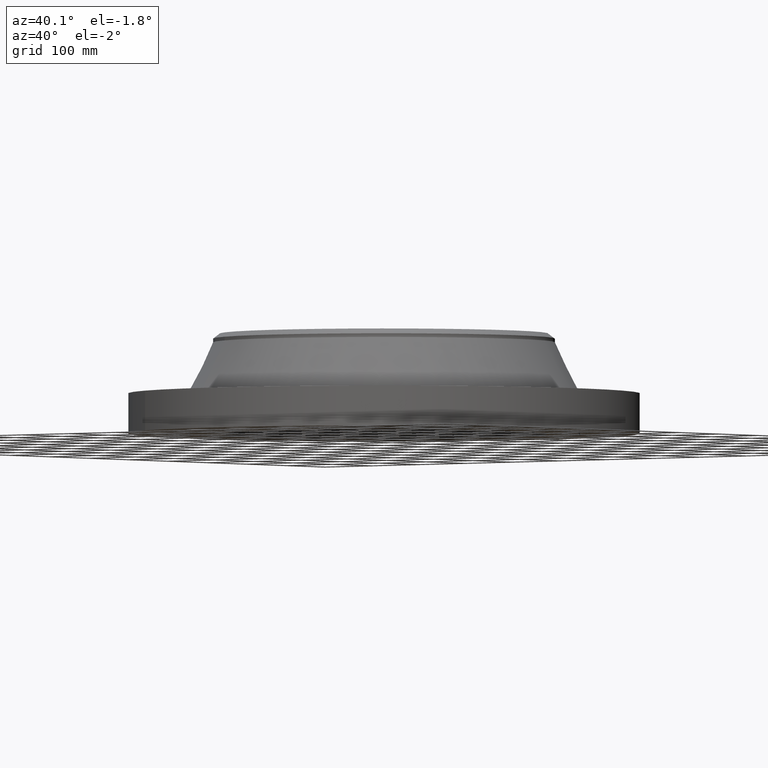
[diagram: clean part render]
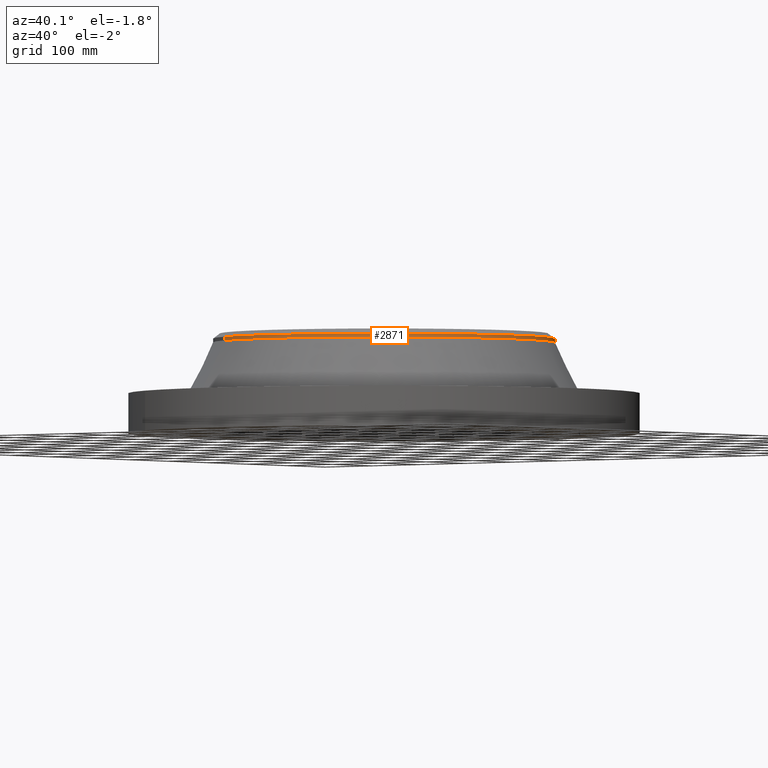
[diagram: same view with one face highlighted and labeled with its STEP entity id]
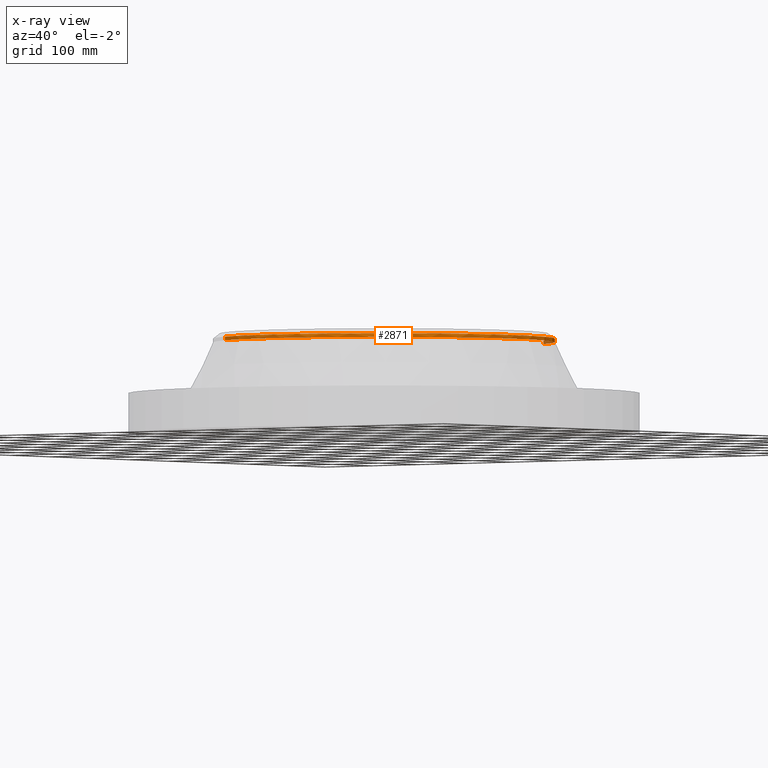
[diagram: x-ray of the same camera — body ghosted, the highlighted face saturated]
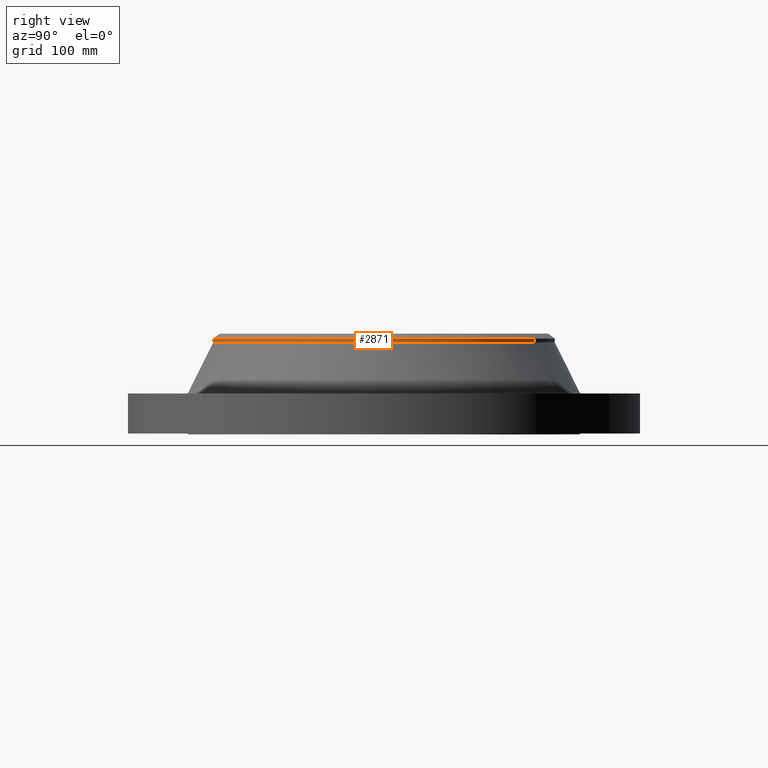
[diagram: same view with one face highlighted and labeled with its STEP entity id]
A machine part, auxiliary view. The second image highlights one B-rep face of the part: STEP entity #2871.
The next image is the same camera in x-ray: the body ghosted, the highlighted face saturated — about 2% of this face is hidden behind the body in this view.
A second angle (right view) of the same face is appended — the face is thin or edge-on in the first view.
In plain terms, the highlighted cylindrical surface (partial cylindrical patch) has radius 279.4 mm, axis along (-0, 0, -1).
Its self-contained STEP definition (entity closure, byte-faithful):
#2519=AXIS2_PLACEMENT_3D('Circle Axis2P3D',#2517,#2518,$) ;
#2850=AXIS2_PLACEMENT_3D('Cylinder Axis2P3D',#2847,#2848,#2849) ;
#2854=AXIS2_PLACEMENT_3D('Circle Axis2P3D',#2852,#2853,$) ;
#2861=AXIS2_PLACEMENT_3D('Circle Axis2P3D',#2859,#2860,$) ;
#2483=CARTESIAN_POINT('Vertex',(-5.27368092465,-9.65340818079,5.87053548147)) ;
#2490=CARTESIAN_POINT('Vertex',(5.27368092465,9.6534081808,5.87053548145)) ;
#2517=CARTESIAN_POINT('Axis2P3D Location',(0.,0.,5.87053548147)) ;
#2806=CARTESIAN_POINT('Line Origine',(5.27368092465,9.65340818079,5.98864571768)) ;
#2810=CARTESIAN_POINT('Vertex',(5.27368092465,9.65340818079,6.1067559539)) ;
#2813=CARTESIAN_POINT('Line Origine',(-5.27368092465,-9.65340818079,5.98864571768)) ;
#2817=CARTESIAN_POINT('Vertex',(-5.27368092465,-9.65340818079,6.1067559539)) ;
#2847=CARTESIAN_POINT('Axis2P3D Location',(0.,0.,3.18375000001)) ;
#2852=CARTESIAN_POINT('Axis2P3D Location',(0.,0.,6.10675595391)) ;
#2856=CARTESIAN_POINT('Vertex',(5.27368092465,-9.65340818079,6.1067559539)) ;
#2859=CARTESIAN_POINT('Axis2P3D Location',(0.,0.,6.1067559539)) ;
#2518=DIRECTION('Axis2P3D Direction',(-0.,0.,-0.0393700787402)) ;
#2807=DIRECTION('Vector Direction',(0.,0.,-0.0393700787402)) ;
#2814=DIRECTION('Vector Direction',(0.,0.,-0.0393700787402)) ;
#2848=DIRECTION('Axis2P3D Direction',(-0.,0.,-0.0393700787402)) ;
#2849=DIRECTION('Axis2P3D XDirection',(0.0188750212049,0.0345504945626,0.)) ;
#2853=DIRECTION('Axis2P3D Direction',(-0.,0.,-0.0393700787402)) ;
#2860=DIRECTION('Axis2P3D Direction',(-0.,0.,-0.0393700787402)) ;
#2808=VECTOR('Line Direction',#2807,0.0393700787402) ;
#2815=VECTOR('Line Direction',#2814,0.0393700787402) ;
#2865=ORIENTED_EDGE('',*,*,#2819,.F.) ;
#2866=ORIENTED_EDGE('',*,*,#2521,.F.) ;
#2867=ORIENTED_EDGE('',*,*,#2812,.T.) ;
#2868=ORIENTED_EDGE('',*,*,#2858,.F.) ;
#2869=ORIENTED_EDGE('',*,*,#2863,.T.) ;
#2871=ADVANCED_FACE('PartBody',(#2870),#2851,.T.) ;
#2520=CIRCLE('generated circle',#2519,11.) ;
#2855=CIRCLE('generated circle',#2854,11.) ;
#2862=CIRCLE('generated circle',#2861,11.) ;
#2851=CYLINDRICAL_SURFACE('generated cylinder',#2850,11.) ;
#2521=EDGE_CURVE('',#2491,#2484,#2520,.T.) ;
#2812=EDGE_CURVE('',#2491,#2811,#2809,.F.) ;
#2819=EDGE_CURVE('',#2484,#2818,#2816,.F.) ;
#2858=EDGE_CURVE('',#2857,#2811,#2855,.F.) ;
#2863=EDGE_CURVE('',#2857,#2818,#2862,.T.) ;
#2864=EDGE_LOOP('',(#2865,#2866,#2867,#2868,#2869)) ;
#2870=FACE_OUTER_BOUND('',#2864,.T.) ;
#2809=LINE('Line',#2806,#2808) ;
#2816=LINE('Line',#2813,#2815) ;
#2484=VERTEX_POINT('',#2483) ;
#2491=VERTEX_POINT('',#2490) ;
#2811=VERTEX_POINT('',#2810) ;
#2818=VERTEX_POINT('',#2817) ;
#2857=VERTEX_POINT('',#2856) ;